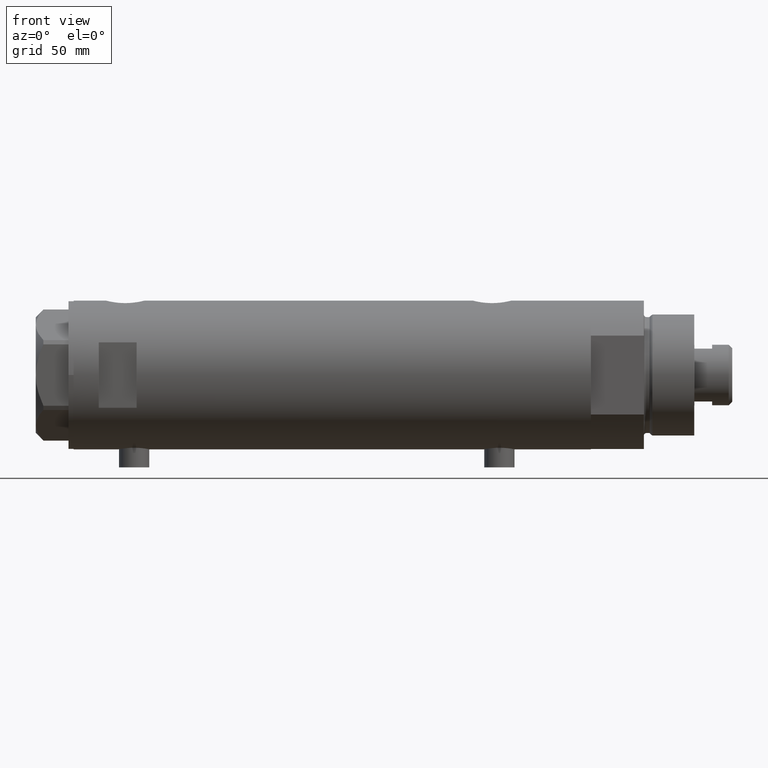
[diagram: clean part render]
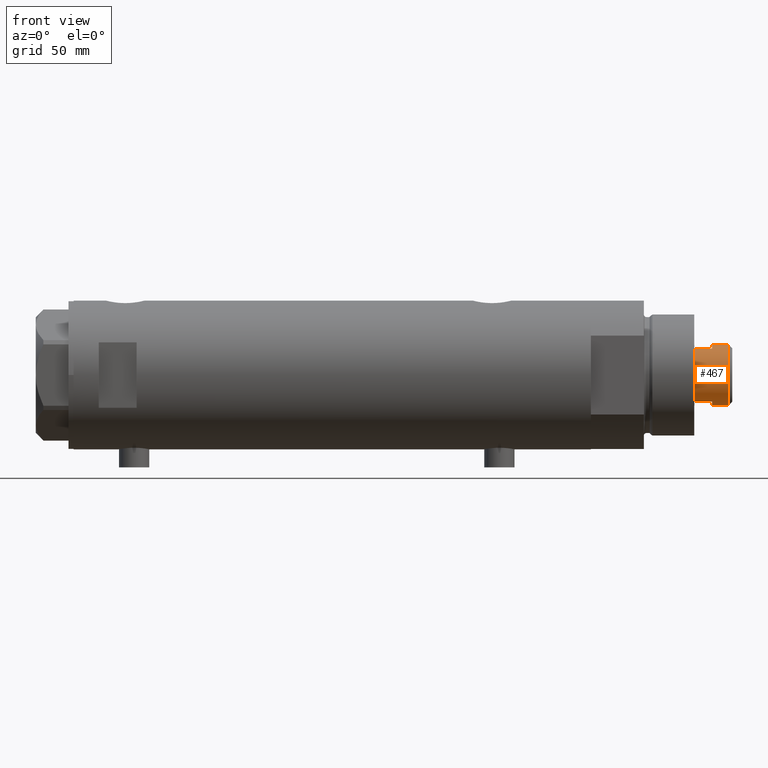
[diagram: same view with one face highlighted and labeled with its STEP entity id]
A machine part, front view. The second image highlights one B-rep face of the part: STEP entity #467.
In plain terms, the highlighted cylindrical surface (edge-blend (fillet) strip) has radius 12 mm, axis along (-1, -0, 0).
Its self-contained STEP definition (entity closure, byte-faithful):
#27 = VERTEX_POINT ( 'NONE', #4587 ) ;
#85 = CARTESIAN_POINT ( 'NONE',  ( 12.00000000000000355, 1.469576158976824342E-15, 229.7500000000000000 ) ) ;
#125 = CARTESIAN_POINT ( 'NONE',  ( -12.00000000000000000, 0.000000000000000000, 236.3499999999999375 ) ) ;
#146 = ORIENTED_EDGE ( 'NONE', *, *, #694, .T. ) ;
#148 = CARTESIAN_POINT ( 'NONE',  ( -10.48861764008966091, -5.830000000000003624, 229.7500000000000000 ) ) ;
#162 = DIRECTION ( 'NONE',  ( 0.000000000000000000, 0.000000000000000000, 1.000000000000000000 ) ) ;
#278 = EDGE_CURVE ( 'NONE', #4163, #1076, #1381, .T. ) ;
#295 = ORIENTED_EDGE ( 'NONE', *, *, #278, .T. ) ;
#304 = CARTESIAN_POINT ( 'NONE',  ( 10.48861764008966446, -5.829999999999997407, 229.7500000000000000 ) ) ;
#313 = ORIENTED_EDGE ( 'NONE', *, *, #501, .F. ) ;
#342 = AXIS2_PLACEMENT_3D ( 'NONE', #4503, #4158, #4526 ) ;
#356 = ORIENTED_EDGE ( 'NONE', *, *, #3321, .T. ) ;
#396 = CARTESIAN_POINT ( 'NONE',  ( 10.48861764008966446, -5.829999999999997407, 229.7500000000000000 ) ) ;
#399 = CARTESIAN_POINT ( 'NONE',  ( 10.48861764008966269, -5.830000000000073790, 222.7500000000000000 ) ) ;
#458 = CIRCLE ( 'NONE', #1554, 12.00000000000000178 ) ;
#467 = ADVANCED_FACE ( 'NONE', ( #2605 ), #803, .T. ) ;
#495 = CARTESIAN_POINT ( 'NONE',  ( 12.00000000000000000, 1.469576158976823947E-15, 236.3499999999999375 ) ) ;
#501 = EDGE_CURVE ( 'NONE', #3695, #1886, #1182, .T. ) ;
#694 = EDGE_CURVE ( 'NONE', #4501, #4422, #4257, .T. ) ;
#803 = CYLINDRICAL_SURFACE ( 'NONE', #937, 12.00000000000000000 ) ;
#937 = AXIS2_PLACEMENT_3D ( 'NONE', #1914, #2981, #4495 ) ;
#950 = ORIENTED_EDGE ( 'NONE', *, *, #4087, .F. ) ;
#1069 = CARTESIAN_POINT ( 'NONE',  ( 0.000000000000000000, 0.000000000000000000, 236.3499999999999375 ) ) ;
#1074 = DIRECTION ( 'NONE',  ( 0.000000000000000000, 0.000000000000000000, 1.000000000000000000 ) ) ;
#1076 = VERTEX_POINT ( 'NONE', #2080 ) ;
#1085 = CARTESIAN_POINT ( 'NONE',  ( 12.00000000000000000, 1.469576158976823947E-15, 229.7500000000000000 ) ) ;
#1100 = EDGE_LOOP ( 'NONE', ( #950, #146, #356, #1447, #295, #3134, #313, #1697 ) ) ;
#1182 = LINE ( 'NONE', #396, #3155 ) ;
#1196 = CIRCLE ( 'NONE', #342, 12.00000000000000000 ) ;
#1305 = EDGE_CURVE ( 'NONE', #27, #4163, #458, .T. ) ;
#1381 = LINE ( 'NONE', #2355, #3856 ) ;
#1447 = ORIENTED_EDGE ( 'NONE', *, *, #1305, .T. ) ;
#1554 = AXIS2_PLACEMENT_3D ( 'NONE', #4648, #1074, #2784 ) ;
#1697 = ORIENTED_EDGE ( 'NONE', *, *, #3606, .T. ) ;
#1766 = DIRECTION ( 'NONE',  ( 0.000000000000000000, 0.000000000000000000, -1.000000000000000000 ) ) ;
#1770 = LINE ( 'NONE', #3207, #4276 ) ;
#1886 = VERTEX_POINT ( 'NONE', #399 ) ;
#1914 = CARTESIAN_POINT ( 'NONE',  ( 0.000000000000000000, 0.000000000000000000, 229.7500000000000000 ) ) ;
#2080 = CARTESIAN_POINT ( 'NONE',  ( -10.48861764008966091, -5.830000000000078231, 222.7500000000000000 ) ) ;
#2355 = CARTESIAN_POINT ( 'NONE',  ( -10.48861764008966091, -5.830000000000000959, 229.7500000000000000 ) ) ;
#2473 = DIRECTION ( 'NONE',  ( -0.000000000000000000, -0.000000000000000000, -1.000000000000000000 ) ) ;
#2534 = DIRECTION ( 'NONE',  ( -0.000000000000000000, -0.000000000000000000, -1.000000000000000000 ) ) ;
#2605 = FACE_OUTER_BOUND ( 'NONE', #1100, .T. ) ;
#2632 = DIRECTION ( 'NONE',  ( -0.000000000000000000, -0.000000000000000000, -1.000000000000000000 ) ) ;
#2776 = DIRECTION ( 'NONE',  ( 1.000000000000000000, 0.000000000000000000, 0.000000000000000000 ) ) ;
#2784 = DIRECTION ( 'NONE',  ( 1.000000000000000000, 0.000000000000000000, 0.000000000000000000 ) ) ;
#2892 = LINE ( 'NONE', #1085, #3275 ) ;
#2981 = DIRECTION ( 'NONE',  ( -0.000000000000000000, -0.000000000000000000, -1.000000000000000000 ) ) ;
#3058 = CARTESIAN_POINT ( 'NONE',  ( 0.000000000000000000, 0.000000000000000000, 229.7500000000000000 ) ) ;
#3067 = AXIS2_PLACEMENT_3D ( 'NONE', #1069, #1766, #3225 ) ;
#3134 = ORIENTED_EDGE ( 'NONE', *, *, #3485, .T. ) ;
#3143 = DIRECTION ( 'NONE',  ( -0.000000000000000000, -0.000000000000000000, -1.000000000000000000 ) ) ;
#3155 = VECTOR ( 'NONE', #2632, 1000.000000000000000 ) ;
#3207 = CARTESIAN_POINT ( 'NONE',  ( -12.00000000000000000, 0.000000000000000000, 229.7500000000000000 ) ) ;
#3225 = DIRECTION ( 'NONE',  ( 1.000000000000000000, 0.000000000000000000, 0.000000000000000000 ) ) ;
#3275 = VECTOR ( 'NONE', #2534, 1000.000000000000000 ) ;
#3321 = EDGE_CURVE ( 'NONE', #4422, #27, #1770, .T. ) ;
#3485 = EDGE_CURVE ( 'NONE', #1076, #1886, #1196, .T. ) ;
#3606 = EDGE_CURVE ( 'NONE', #3695, #4076, #4518, .T. ) ;
#3695 = VERTEX_POINT ( 'NONE', #304 ) ;
#3856 = VECTOR ( 'NONE', #3143, 1000.000000000000000 ) ;
#4076 = VERTEX_POINT ( 'NONE', #85 ) ;
#4087 = EDGE_CURVE ( 'NONE', #4501, #4076, #2892, .T. ) ;
#4158 = DIRECTION ( 'NONE',  ( 0.000000000000000000, 0.000000000000000000, 1.000000000000000000 ) ) ;
#4163 = VERTEX_POINT ( 'NONE', #148 ) ;
#4257 = CIRCLE ( 'NONE', #3067, 12.00000000000000000 ) ;
#4276 = VECTOR ( 'NONE', #2473, 1000.000000000000000 ) ;
#4422 = VERTEX_POINT ( 'NONE', #125 ) ;
#4443 = AXIS2_PLACEMENT_3D ( 'NONE', #3058, #162, #2776 ) ;
#4495 = DIRECTION ( 'NONE',  ( -1.000000000000000000, 0.000000000000000000, 0.000000000000000000 ) ) ;
#4501 = VERTEX_POINT ( 'NONE', #495 ) ;
#4503 = CARTESIAN_POINT ( 'NONE',  ( 0.000000000000000000, 0.000000000000000000, 222.7500000000000000 ) ) ;
#4518 = CIRCLE ( 'NONE', #4443, 12.00000000000000178 ) ;
#4526 = DIRECTION ( 'NONE',  ( 1.000000000000000000, 0.000000000000000000, 0.000000000000000000 ) ) ;
#4587 = CARTESIAN_POINT ( 'NONE',  ( -12.00000000000000355, 0.000000000000000000, 229.7500000000000000 ) ) ;
#4648 = CARTESIAN_POINT ( 'NONE',  ( 0.000000000000000000, 0.000000000000000000, 229.7500000000000000 ) ) ;